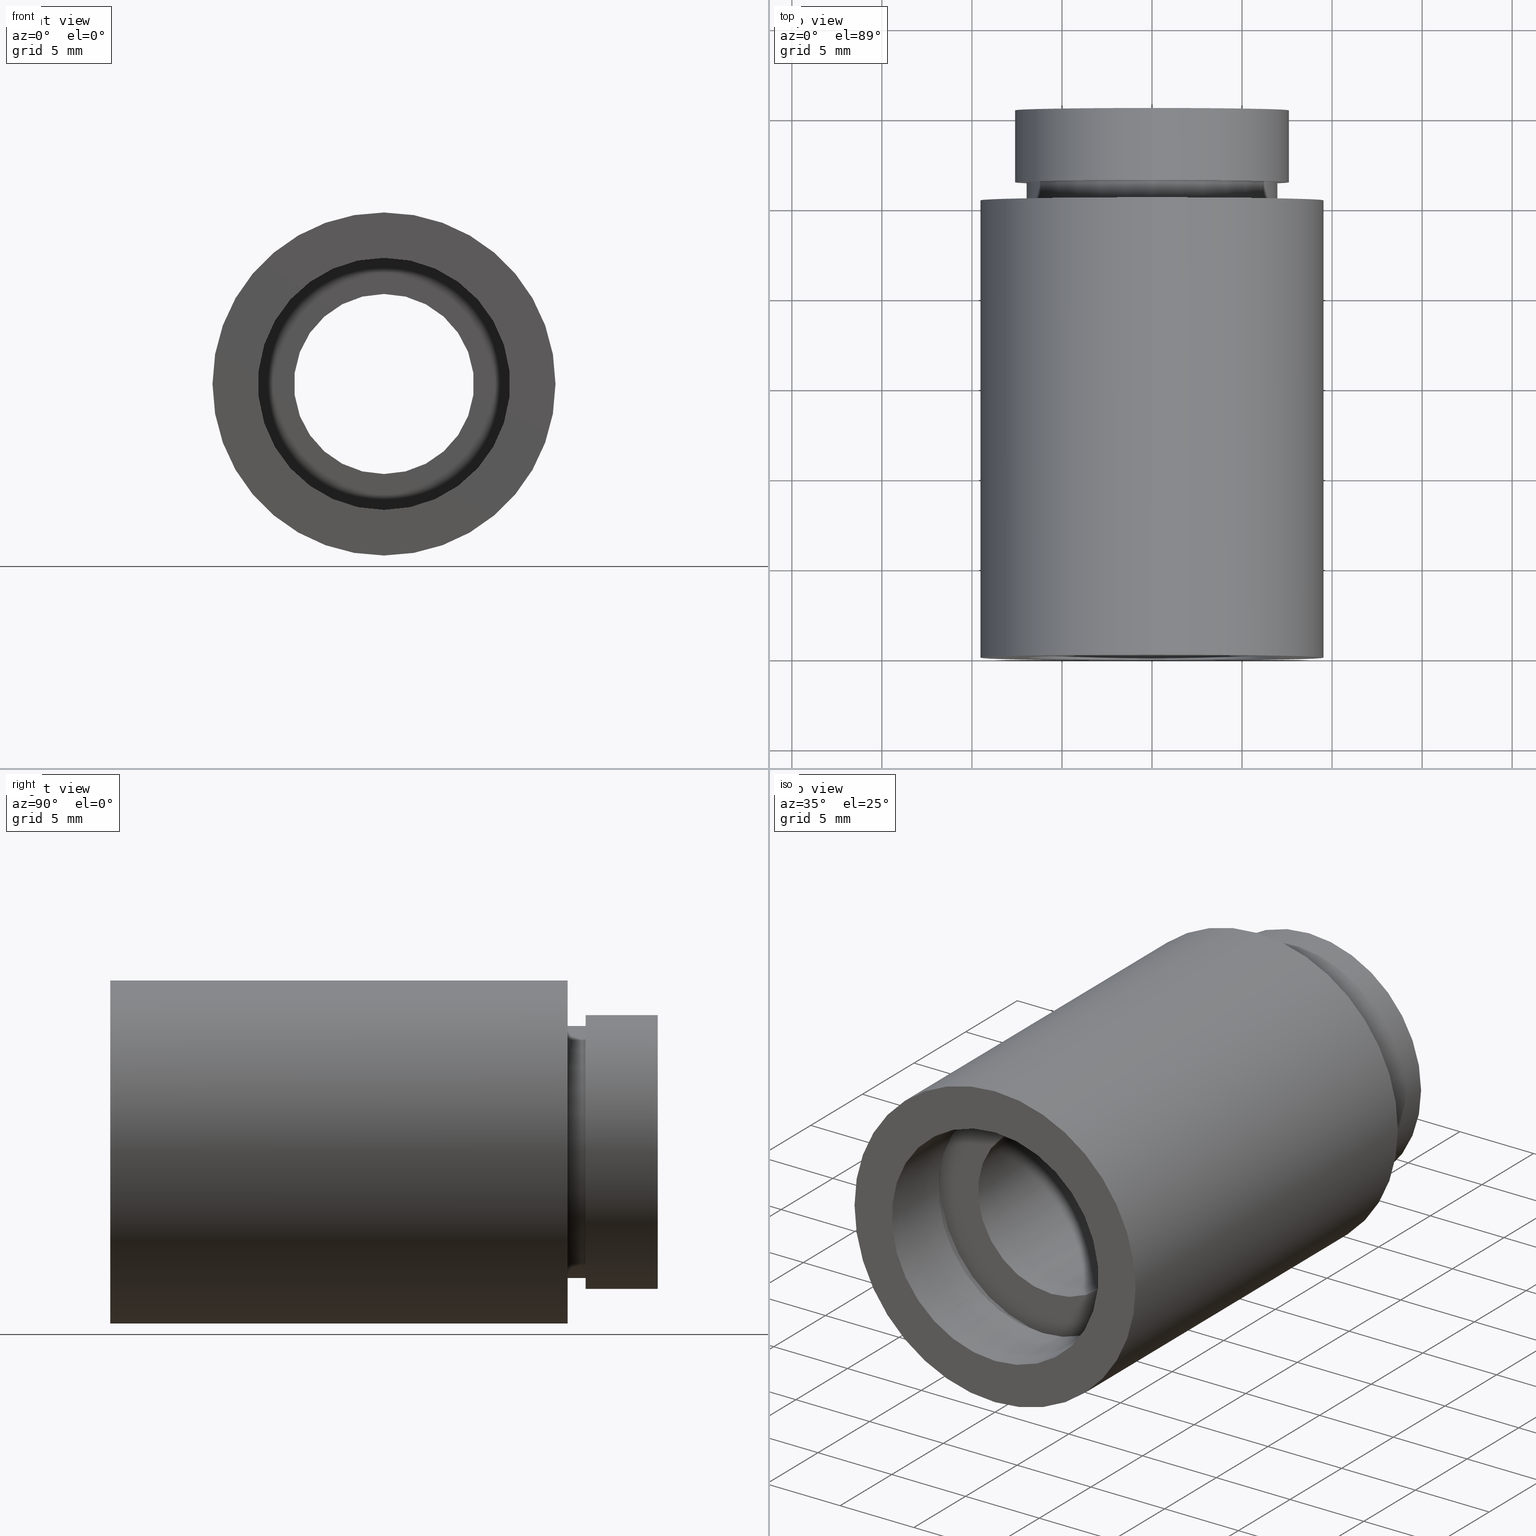
[diagram: canonical four-view strip — front | top / right | iso, engineering-drawing reading convention]
A machine part, canonical four-view strip (front | top / right | iso — engineering-drawing reading convention). The complete STEP part file that produces these views, byte-faithful:
ISO-10303-21;
HEADER;
FILE_DESCRIPTION (( 'STEP AP214' ),
    '1' );
FILE_NAME ('503091.STEP',
    '2019-09-11T06:44:25',
    ( '' ),
    ( '' ),
    'SwSTEP 2.0',
    'SolidWorks 2016',
    '' );
FILE_SCHEMA (( 'AUTOMOTIVE_DESIGN' ));
ENDSEC;

DATA;
#1 = ORIENTED_EDGE ( 'NONE', *, *, #303, .T. ) ;
#2 = VERTEX_POINT ( 'NONE', #529 ) ;
#3 = EDGE_CURVE ( 'NONE', #595, #363, #457, .T. ) ;
#4 = VECTOR ( 'NONE', #300, 1000.000000000000000 ) ;
#5 = CARTESIAN_POINT ( 'NONE',  ( 0.0000000000000000000, 5.499999999999976900, 7.600000000000020100 ) ) ;
#6 = CARTESIAN_POINT ( 'NONE',  ( 9.307315673519909100E-016, 161.3761669434274500, -7.600000000000020100 ) ) ;
#7 =( LENGTH_UNIT ( ) NAMED_UNIT ( * ) SI_UNIT ( .MILLI., .METRE. ) );
#8 = PLANE ( 'NONE',  #167 ) ;
#9 = ORIENTED_EDGE ( 'NONE', *, *, #423, .T. ) ;
#10 = CARTESIAN_POINT ( 'NONE',  ( 0.0000000000000000000, 161.3761669434274500, 0.0000000000000000000 ) ) ;
#11 = DIRECTION ( 'NONE',  ( -0.0000000000000000000, 1.000000000000000000, -0.0000000000000000000 ) ) ;
#12 = COLOUR_RGB ( '',1.000000000000000000, 1.000000000000000000, 1.000000000000000000 ) ;
#13 = MECHANICAL_DESIGN_GEOMETRIC_PRESENTATION_REPRESENTATION (  '', ( #597 ), #334 ) ;
#14 = CARTESIAN_POINT ( 'NONE',  ( 0.0000000000000000000, 26.39999999999997700, 0.0000000000000000000 ) ) ;
#15 = CARTESIAN_POINT ( 'NONE',  ( 0.0000000000000000000, 26.39999999999997700, 0.0000000000000000000 ) ) ;
#16 = EDGE_CURVE ( 'NONE', #25, #376, #422, .T. ) ;
#17 = ORIENTED_EDGE ( 'NONE', *, *, #301, .T. ) ;
#18 = COLOUR_RGB ( '',1.000000000000000000, 1.000000000000000000, 1.000000000000000000 ) ;
#19 = SURFACE_STYLE_USAGE ( .BOTH. , #70 ) ;
#20 = CYLINDRICAL_SURFACE ( 'NONE', #211, 7.600000000000014700 ) ;
#21 = CIRCLE ( 'NONE', #396, 7.600000000000019200 ) ;
#22 = FACE_OUTER_BOUND ( 'NONE', #248, .T. ) ;
#23 = CARTESIAN_POINT ( 'NONE',  ( 9.307315673519901200E-016, 161.3761669434274500, -7.600000000000014700 ) ) ;
#24 = DIRECTION ( 'NONE',  ( -0.0000000000000000000, 1.000000000000000000, -0.0000000000000000000 ) ) ;
#25 = VERTEX_POINT ( 'NONE', #349 ) ;
#26 = CARTESIAN_POINT ( 'NONE',  ( 1.166476076187856400E-015, 25.39999999999997700, -9.525000000000019900 ) ) ;
#27 = AXIS2_PLACEMENT_3D ( 'NONE', #420, #139, #514 ) ;
#28 = ORIENTED_EDGE ( 'NONE', *, *, #82, .T. ) ;
#29 = CIRCLE ( 'NONE', #165, 5.000000000000019500 ) ;
#30 = ADVANCED_FACE ( 'NONE', ( #599, #190 ), #8, .F. ) ;
#31 = EDGE_CURVE ( 'NONE', #437, #413, #221, .T. ) ;
#32 = CARTESIAN_POINT ( 'NONE',  ( 0.0000000000000000000, 161.3761669434274500, 5.000000000000019500 ) ) ;
#33 = DIRECTION ( 'NONE',  ( 0.0000000000000000000, 0.0000000000000000000, 1.000000000000000000 ) ) ;
#34 = ORIENTED_EDGE ( 'NONE', *, *, #220, .F. ) ;
#35 = DIRECTION ( 'NONE',  ( 0.0000000000000000000, 0.0000000000000000000, 1.000000000000000000 ) ) ;
#36 = DIRECTION ( 'NONE',  ( -0.0000000000000000000, 1.000000000000000000, -0.0000000000000000000 ) ) ;
#37 = EDGE_CURVE ( 'NONE', #347, #393, #348, .T. ) ;
#38 = DIRECTION ( 'NONE',  ( 0.0000000000000000000, 0.0000000000000000000, 1.000000000000000000 ) ) ;
#39 = EDGE_LOOP ( 'NONE', ( #251, #66 ) ) ;
#40 = ADVANCED_FACE ( 'NONE', ( #335 ), #621, .F. ) ;
#41 = AXIS2_PLACEMENT_3D ( 'NONE', #151, #108, #391 ) ;
#42 = DIRECTION ( 'NONE',  ( 0.0000000000000000000, 0.0000000000000000000, 1.000000000000000000 ) ) ;
#43 = ORIENTED_EDGE ( 'NONE', *, *, #444, .F. ) ;
#44 = SURFACE_STYLE_FILL_AREA ( #325 ) ;
#45 = FILL_AREA_STYLE ('',( #323 ) ) ;
#46 =( NAMED_UNIT ( * ) SI_UNIT ( $, .STERADIAN. ) SOLID_ANGLE_UNIT ( ) );
#47 = AXIS2_PLACEMENT_3D ( 'NONE', #101, #436, #57 ) ;
#48 = DIRECTION ( 'NONE',  ( 0.0000000000000000000, 0.0000000000000000000, 1.000000000000000000 ) ) ;
#49 = ORIENTED_EDGE ( 'NONE', *, *, #126, .F. ) ;
#50 = PRODUCT_DEFINITION_CONTEXT ( 'detailed design', #53, 'design' ) ;
#51 = FACE_BOUND ( 'NONE', #494, .T. ) ;
#52 = DIRECTION ( 'NONE',  ( 0.0000000000000000000, 0.0000000000000000000, 1.000000000000000000 ) ) ;
#53 = APPLICATION_CONTEXT ( 'automotive_design' ) ;
#54 = DIRECTION ( 'NONE',  ( -0.0000000000000000000, 1.000000000000000000, -0.0000000000000000000 ) ) ;
#55 = ORIENTED_EDGE ( 'NONE', *, *, #106, .T. ) ;
#56 = ORIENTED_EDGE ( 'NONE', *, *, #247, .T. ) ;
#57 = DIRECTION ( 'NONE',  ( 0.0000000000000000000, 0.0000000000000000000, 1.000000000000000000 ) ) ;
#58 = DIRECTION ( 'NONE',  ( 0.0000000000000000000, 0.0000000000000000000, 1.000000000000000000 ) ) ;
#59 = STYLED_ITEM ( 'NONE', ( #466 ), #230 ) ;
#60 = DIRECTION ( 'NONE',  ( -0.0000000000000000000, 1.000000000000000000, -0.0000000000000000000 ) ) ;
#61 = DIRECTION ( 'NONE',  ( 0.0000000000000000000, 0.0000000000000000000, 1.000000000000000000 ) ) ;
#62 = EDGE_CURVE ( 'NONE', #98, #2, #222, .T. ) ;
#63 = DIRECTION ( 'NONE',  ( -0.0000000000000000000, 1.000000000000000000, -0.0000000000000000000 ) ) ;
#64 = ORIENTED_EDGE ( 'NONE', *, *, #476, .T. ) ;
#65 = CIRCLE ( 'NONE', #47, 7.600000000000020100 ) ;
#66 = ORIENTED_EDGE ( 'NONE', *, *, #433, .F. ) ;
#67 = SURFACE_STYLE_USAGE ( .BOTH. , #538 ) ;
#68 = AXIS2_PLACEMENT_3D ( 'NONE', #559, #183, #564 ) ;
#69 =( NAMED_UNIT ( * ) PLANE_ANGLE_UNIT ( ) SI_UNIT ( $, .RADIAN. ) );
#70 = SURFACE_SIDE_STYLE ('',( #299 ) ) ;
#71 = EDGE_CURVE ( 'NONE', #258, #616, #601, .T. ) ;
#72 = ORIENTED_EDGE ( 'NONE', *, *, #402, .T. ) ;
#73 = EDGE_LOOP ( 'NONE', ( #446, #540 ) ) ;
#74 = DIRECTION ( 'NONE',  ( 0.0000000000000000000, 0.0000000000000000000, 1.000000000000000000 ) ) ;
#75 = FACE_BOUND ( 'NONE', #39, .T. ) ;
#76 = AXIS2_PLACEMENT_3D ( 'NONE', #129, #414, #500 ) ;
#77 = CARTESIAN_POINT ( 'NONE',  ( 1.166476076187856400E-015, 161.3761669434274500, -9.525000000000019900 ) ) ;
#78 = FILL_AREA_STYLE_COLOUR ( '', #178 ) ;
#79 = PRESENTATION_LAYER_ASSIGNMENT (  '', '', ( #378 ) ) ;
#80 = DIRECTION ( 'NONE',  ( -0.0000000000000000000, 1.000000000000000000, -0.0000000000000000000 ) ) ;
#81 = CYLINDRICAL_SURFACE ( 'NONE', #503, 5.000000000000019500 ) ;
#82 = EDGE_CURVE ( 'NONE', #399, #607, #507, .T. ) ;
#83 = CARTESIAN_POINT ( 'NONE',  ( 0.0000000000000000000, 161.3761669434274500, 0.0000000000000000000 ) ) ;
#84 = ORIENTED_EDGE ( 'NONE', *, *, #82, .F. ) ;
#85 = PLANE ( 'NONE',  #296 ) ;
#86 = SURFACE_STYLE_USAGE ( .BOTH. , #232 ) ;
#87 = AXIS2_PLACEMENT_3D ( 'NONE', #583, #346, #253 ) ;
#88 = PRODUCT_CONTEXT ( 'NONE', #615, 'mechanical' ) ;
#89 = DIRECTION ( 'NONE',  ( -0.0000000000000000000, 1.000000000000000000, -0.0000000000000000000 ) ) ;
#90 = EDGE_CURVE ( 'NONE', #575, #399, #336, .T. ) ;
#91 = VECTOR ( 'NONE', #54, 1000.000000000000000 ) ;
#92 =( NAMED_UNIT ( * ) SI_UNIT ( $, .STERADIAN. ) SOLID_ANGLE_UNIT ( ) );
#93 = DIRECTION ( 'NONE',  ( 0.0000000000000000000, -1.000000000000000000, 0.0000000000000000000 ) ) ;
#94 = DIRECTION ( 'NONE',  ( 0.0000000000000000000, -1.000000000000000000, 0.0000000000000000000 ) ) ;
#95 = DIRECTION ( 'NONE',  ( 1.000000000000000000, 0.0000000000000000000, 0.0000000000000000000 ) ) ;
#96 = ORIENTED_EDGE ( 'NONE', *, *, #301, .F. ) ;
#97 = SURFACE_SIDE_STYLE ('',( #526 ) ) ;
#98 = VERTEX_POINT ( 'NONE', #586 ) ;
#99 = EDGE_CURVE ( 'NONE', #607, #404, #372, .T. ) ;
#100 = FACE_OUTER_BOUND ( 'NONE', #225, .T. ) ;
#101 = CARTESIAN_POINT ( 'NONE',  ( 0.0000000000000000000, 5.499999999999976900, 0.0000000000000000000 ) ) ;
#102 = ORIENTED_EDGE ( 'NONE', *, *, #71, .T. ) ;
#103 = DIRECTION ( 'NONE',  ( -0.0000000000000000000, 1.000000000000000000, 0.0000000000000000000 ) ) ;
#104 = SURFACE_STYLE_FILL_AREA ( #544 ) ;
#105 = UNCERTAINTY_MEASURE_WITH_UNIT (LENGTH_MEASURE( 1.000000000000000100E-005 ), #326, 'distance_accuracy_value', 'NONE');
#106 = EDGE_CURVE ( 'NONE', #2, #363, #431, .T. ) ;
#107 = CARTESIAN_POINT ( 'NONE',  ( 9.307315673519901200E-016, 30.39999999999998400, -7.600000000000014700 ) ) ;
#108 = DIRECTION ( 'NONE',  ( -0.0000000000000000000, 1.000000000000000000, -0.0000000000000000000 ) ) ;
#109 = ORIENTED_EDGE ( 'NONE', *, *, #160, .F. ) ;
#110 = DIRECTION ( 'NONE',  ( -0.0000000000000000000, 1.000000000000000000, 0.0000000000000000000 ) ) ;
#111 = AXIS2_PLACEMENT_3D ( 'NONE', #482, #93, #428 ) ;
#112 = LINE ( 'NONE', #77, #191 ) ;
#113 = DIRECTION ( 'NONE',  ( -0.0000000000000000000, 1.000000000000000000, 0.0000000000000000000 ) ) ;
#114 = EDGE_CURVE ( 'NONE', #204, #132, #317, .T. ) ;
#115 = EDGE_LOOP ( 'NONE', ( #146, #462, #72, #288 ) ) ;
#116 = CARTESIAN_POINT ( 'NONE',  ( 0.0000000000000000000, 30.39999999999998400, 0.0000000000000000000 ) ) ;
#117 = ORIENTED_EDGE ( 'NONE', *, *, #99, .F. ) ;
#118 = FACE_OUTER_BOUND ( 'NONE', #441, .T. ) ;
#119 = CYLINDRICAL_SURFACE ( 'NONE', #545, 7.600000000000020100 ) ;
#120 = DIRECTION ( 'NONE',  ( -0.0000000000000000000, 1.000000000000000000, -0.0000000000000000000 ) ) ;
#121 = AXIS2_PLACEMENT_3D ( 'NONE', #468, #272, #425 ) ;
#122 = VERTEX_POINT ( 'NONE', #26 ) ;
#123 = SURFACE_SIDE_STYLE ('',( #104 ) ) ;
#124 = CIRCLE ( 'NONE', #217, 9.525000000000019900 ) ;
#125 = ORIENTED_EDGE ( 'NONE', *, *, #361, .T. ) ;
#126 = EDGE_CURVE ( 'NONE', #363, #595, #509, .T. ) ;
#127 = ADVANCED_FACE ( 'NONE', ( #537 ), #119, .F. ) ;
#128 = CARTESIAN_POINT ( 'NONE',  ( 0.0000000000000000000, 25.39999999999997700, 7.000000000000015100 ) ) ;
#129 = CARTESIAN_POINT ( 'NONE',  ( 0.0000000000000000000, 26.39999999999997700, 0.0000000000000000000 ) ) ;
#130 = PRESENTATION_LAYER_ASSIGNMENT (  '', '', ( #155 ) ) ;
#131 = ORIENTED_EDGE ( 'NONE', *, *, #220, .T. ) ;
#132 = VERTEX_POINT ( 'NONE', #533 ) ;
#133 = SHAPE_DEFINITION_REPRESENTATION ( #426, #453 ) ;
#134 = FACE_OUTER_BOUND ( 'NONE', #152, .T. ) ;
#135 = AXIS2_PLACEMENT_3D ( 'NONE', #291, #489, #58 ) ;
#136 = ADVANCED_FACE ( 'NONE', ( #22 ), #81, .F. ) ;
#137 = SURFACE_STYLE_USAGE ( .BOTH. , #424 ) ;
#138 = ORIENTED_EDGE ( 'NONE', *, *, #618, .F. ) ;
#139 = DIRECTION ( 'NONE',  ( -0.0000000000000000000, 1.000000000000000000, -0.0000000000000000000 ) ) ;
#140 = DIRECTION ( 'NONE',  ( 0.0000000000000000000, 0.0000000000000000000, 1.000000000000000000 ) ) ;
#141 = CARTESIAN_POINT ( 'NONE',  ( 0.0000000000000000000, 161.3761669434274500, 7.000000000000020400 ) ) ;
#142 = EDGE_LOOP ( 'NONE', ( #452, #536, #320, #394 ) ) ;
#143 = AXIS2_PLACEMENT_3D ( 'NONE', #397, #110, #531 ) ;
#144 = SURFACE_STYLE_USAGE ( .BOTH. , #97 ) ;
#145 = CARTESIAN_POINT ( 'NONE',  ( 9.525000000000019900, 25.39999999999997700, 0.0000000000000000000 ) ) ;
#146 = ORIENTED_EDGE ( 'NONE', *, *, #171, .F. ) ;
#147 = EDGE_CURVE ( 'NONE', #2, #98, #572, .T. ) ;
#148 = DIRECTION ( 'NONE',  ( -0.0000000000000000000, 1.000000000000000000, -0.0000000000000000000 ) ) ;
#149 = CARTESIAN_POINT ( 'NONE',  ( 7.600000000000020100, 5.499999999999984000, 0.0000000000000000000 ) ) ;
#150 = CARTESIAN_POINT ( 'NONE',  ( 8.572527594031496900E-016, 161.3761669434274500, -7.000000000000020400 ) ) ;
#151 = CARTESIAN_POINT ( 'NONE',  ( 0.0000000000000000000, -2.775557561562891400E-014, 0.0000000000000000000 ) ) ;
#152 = EDGE_LOOP ( 'NONE', ( #262, #527, #96, #340 ) ) ;
#153 = CARTESIAN_POINT ( 'NONE',  ( 0.0000000000000000000, -2.775557561562891400E-014, 0.0000000000000000000 ) ) ;
#154 = ORIENTED_EDGE ( 'NONE', *, *, #423, .F. ) ;
#155 = STYLED_ITEM ( 'NONE', ( #563 ), #212 ) ;
#156 = PLANE ( 'NONE',  #143 ) ;
#157 = CIRCLE ( 'NONE', #418, 9.525000000000019900 ) ;
#158 = CARTESIAN_POINT ( 'NONE',  ( 0.0000000000000000000, 5.499999999999976900, 5.000000000000019500 ) ) ;
#159 = CARTESIAN_POINT ( 'NONE',  ( 0.0000000000000000000, 161.3761669434274500, 7.600000000000020100 ) ) ;
#160 = EDGE_CURVE ( 'NONE', #98, #595, #198, .T. ) ;
#161 = FILL_AREA_STYLE ('',( #359 ) ) ;
#162 = ORIENTED_EDGE ( 'NONE', *, *, #269, .F. ) ;
#163 = FILL_AREA_STYLE ('',( #485 ) ) ;
#164 = CIRCLE ( 'NONE', #587, 7.000000000000020400 ) ;
#165 = AXIS2_PLACEMENT_3D ( 'NONE', #278, #382, #332 ) ;
#166 = DIRECTION ( 'NONE',  ( -0.0000000000000000000, 1.000000000000000000, -0.0000000000000000000 ) ) ;
#167 = AXIS2_PLACEMENT_3D ( 'NONE', #149, #103, #395 ) ;
#168 = ORIENTED_EDGE ( 'NONE', *, *, #247, .F. ) ;
#169 = DIRECTION ( 'NONE',  ( 0.0000000000000000000, 0.0000000000000000000, 1.000000000000000000 ) ) ;
#170 = FACE_OUTER_BOUND ( 'NONE', #268, .T. ) ;
#171 = EDGE_CURVE ( 'NONE', #347, #25, #21, .T. ) ;
#172 =( LENGTH_UNIT ( ) NAMED_UNIT ( * ) SI_UNIT ( .MILLI., .METRE. ) );
#173 =( NAMED_UNIT ( * ) SI_UNIT ( $, .STERADIAN. ) SOLID_ANGLE_UNIT ( ) );
#174 = ORIENTED_EDGE ( 'NONE', *, *, #454, .T. ) ;
#175 = DIRECTION ( 'NONE',  ( -0.0000000000000000000, 1.000000000000000000, -0.0000000000000000000 ) ) ;
#176 = PRESENTATION_STYLE_ASSIGNMENT (( #337 ) ) ;
#177 = FACE_OUTER_BOUND ( 'NONE', #504, .T. ) ;
#178 = COLOUR_RGB ( '',1.000000000000000000, 1.000000000000000000, 1.000000000000000000 ) ;
#179 = STYLED_ITEM ( 'NONE', ( #277 ), #40 ) ;
#180 = SURFACE_STYLE_USAGE ( .BOTH. , #123 ) ;
#181 = FACE_OUTER_BOUND ( 'NONE', #375, .T. ) ;
#182 = ADVANCED_FACE ( 'NONE', ( #611 ), #553, .T. ) ;
#183 = DIRECTION ( 'NONE',  ( -0.0000000000000000000, 1.000000000000000000, -0.0000000000000000000 ) ) ;
#184 = EDGE_CURVE ( 'NONE', #575, #404, #388, .T. ) ;
#185 =( NAMED_UNIT ( * ) PLANE_ANGLE_UNIT ( ) SI_UNIT ( $, .RADIAN. ) );
#186 = ORIENTED_EDGE ( 'NONE', *, *, #263, .F. ) ;
#187 = CARTESIAN_POINT ( 'NONE',  ( 0.0000000000000000000, 161.3761669434274500, 9.525000000000019900 ) ) ;
#188 = PRESENTATION_STYLE_ASSIGNMENT (( #144 ) ) ;
#189 = ADVANCED_FACE ( 'NONE', ( #181 ), #236, .T. ) ;
#190 = FACE_BOUND ( 'NONE', #577, .T. ) ;
#191 = VECTOR ( 'NONE', #223, 1000.000000000000000 ) ;
#192 = MECHANICAL_DESIGN_GEOMETRIC_PRESENTATION_REPRESENTATION (  '', ( #155 ), #321 ) ;
#193 = CARTESIAN_POINT ( 'NONE',  ( 8.572527594031490900E-016, 26.39999999999997700, -7.000000000000015100 ) ) ;
#194 =( NAMED_UNIT ( * ) PLANE_ANGLE_UNIT ( ) SI_UNIT ( $, .RADIAN. ) );
#195 = EDGE_CURVE ( 'NONE', #525, #122, #112, .T. ) ;
#196 = EDGE_LOOP ( 'NONE', ( #43, #297 ) ) ;
#197 = DIRECTION ( 'NONE',  ( -0.0000000000000000000, 1.000000000000000000, -0.0000000000000000000 ) ) ;
#198 = LINE ( 'NONE', #23, #229 ) ;
#199 = DIRECTION ( 'NONE',  ( -0.0000000000000000000, 1.000000000000000000, -0.0000000000000000000 ) ) ;
#200 = DIRECTION ( 'NONE',  ( 0.0000000000000000000, 0.0000000000000000000, 1.000000000000000000 ) ) ;
#201 = CARTESIAN_POINT ( 'NONE',  ( 0.0000000000000000000, 30.39999999999998400, 0.0000000000000000000 ) ) ;
#202 = ORIENTED_EDGE ( 'NONE', *, *, #269, .T. ) ;
#203 = AXIS2_PLACEMENT_3D ( 'NONE', #15, #541, #493 ) ;
#204 = VERTEX_POINT ( 'NONE', #128 ) ;
#205 = DIRECTION ( 'NONE',  ( 0.0000000000000000000, -0.0000000000000000000, -1.000000000000000000 ) ) ;
#206 = CIRCLE ( 'NONE', #266, 7.000000000000019500 ) ;
#207 = DIRECTION ( 'NONE',  ( 0.0000000000000000000, 0.0000000000000000000, 1.000000000000000000 ) ) ;
#208 = MECHANICAL_DESIGN_GEOMETRIC_PRESENTATION_REPRESENTATION (  '', ( #179 ), #213 ) ;
#209 = PLANE ( 'NONE',  #365 ) ;
#210 = CLOSED_SHELL ( 'NONE', ( #230, #127, #136, #189, #467, #605, #502, #366, #411, #182, #602, #310, #322, #40, #30, #558, #455, #369 ) ) ;
#211 = AXIS2_PLACEMENT_3D ( 'NONE', #612, #381, #508 ) ;
#212 = MANIFOLD_SOLID_BREP ( '��ת1', #210 ) ;
#213 =( GEOMETRIC_REPRESENTATION_CONTEXT ( 3 ) GLOBAL_UNCERTAINTY_ASSIGNED_CONTEXT ( ( #613 ) ) GLOBAL_UNIT_ASSIGNED_CONTEXT ( ( #443, #496, #450 ) ) REPRESENTATION_CONTEXT ( 'NONE', 'WORKASPACE' ) );
#214 = DIRECTION ( 'NONE',  ( 0.0000000000000000000, 0.0000000000000000000, 1.000000000000000000 ) ) ;
#215 = ORIENTED_EDGE ( 'NONE', *, *, #487, .T. ) ;
#216 = DIRECTION ( 'NONE',  ( -0.0000000000000000000, 1.000000000000000000, -0.0000000000000000000 ) ) ;
#217 = AXIS2_PLACEMENT_3D ( 'NONE', #469, #89, #38 ) ;
#218 =( NAMED_UNIT ( * ) PLANE_ANGLE_UNIT ( ) SI_UNIT ( $, .RADIAN. ) );
#219 = ORIENTED_EDGE ( 'NONE', *, *, #62, .T. ) ;
#220 = EDGE_CURVE ( 'NONE', #122, #257, #157, .T. ) ;
#221 = CIRCLE ( 'NONE', #41, 7.000000000000019500 ) ;
#222 = CIRCLE ( 'NONE', #203, 7.600000000000014700 ) ;
#223 = DIRECTION ( 'NONE',  ( -0.0000000000000000000, 1.000000000000000000, -0.0000000000000000000 ) ) ;
#224 = MECHANICAL_DESIGN_GEOMETRIC_PRESENTATION_REPRESENTATION (  '', ( #386 ), #581 ) ;
#225 = EDGE_LOOP ( 'NONE', ( #360, #486, #330, #64 ) ) ;
#226 = ORIENTED_EDGE ( 'NONE', *, *, #184, .T. ) ;
#227 = CARTESIAN_POINT ( 'NONE',  ( 0.0000000000000000000, 30.39999999999998400, 7.600000000000014700 ) ) ;
#228 = AXIS2_PLACEMENT_3D ( 'NONE', #480, #478, #200 ) ;
#229 = VECTOR ( 'NONE', #36, 1000.000000000000000 ) ;
#230 = ADVANCED_FACE ( 'NONE', ( #252 ), #561, .F. ) ;
#231 = EDGE_CURVE ( 'NONE', #437, #419, #620, .T. ) ;
#232 = SURFACE_SIDE_STYLE ('',( #44 ) ) ;
#233 = UNCERTAINTY_MEASURE_WITH_UNIT (LENGTH_MEASURE( 1.000000000000000100E-005 ), #172, 'distance_accuracy_value', 'NONE');
#234 = ORIENTED_EDGE ( 'NONE', *, *, #126, .T. ) ;
#235 =( NAMED_UNIT ( * ) SI_UNIT ( $, .STERADIAN. ) SOLID_ANGLE_UNIT ( ) );
#236 = CYLINDRICAL_SURFACE ( 'NONE', #358, 7.600000000000014700 ) ;
#237 = AXIS2_PLACEMENT_3D ( 'NONE', #14, #295, #61 ) ;
#238 = DIRECTION ( 'NONE',  ( -0.0000000000000000000, 1.000000000000000000, -0.0000000000000000000 ) ) ;
#239 = CARTESIAN_POINT ( 'NONE',  ( 0.0000000000000000000, -2.775557561562891400E-014, 0.0000000000000000000 ) ) ;
#240 = APPLICATION_PROTOCOL_DEFINITION ( 'draft international standard', 'automotive_design', 1998, #53 ) ;
#241 = MECHANICAL_DESIGN_GEOMETRIC_PRESENTATION_REPRESENTATION (  '', ( #280 ), #294 ) ;
#242 = ORIENTED_EDGE ( 'NONE', *, *, #603, .F. ) ;
#243 = CARTESIAN_POINT ( 'NONE',  ( 0.0000000000000000000, 30.39999999999998400, 5.000000000000019500 ) ) ;
#244 =( NAMED_UNIT ( * ) PLANE_ANGLE_UNIT ( ) SI_UNIT ( $, .RADIAN. ) );
#245 = CIRCLE ( 'NONE', #27, 7.000000000000015100 ) ;
#246 = VECTOR ( 'NONE', #400, 1000.000000000000000 ) ;
#247 = EDGE_CURVE ( 'NONE', #525, #285, #306, .T. ) ;
#248 = EDGE_LOOP ( 'NONE', ( #242, #28, #354, #499 ) ) ;
#249 = AXIS2_PLACEMENT_3D ( 'NONE', #239, #199, #140 ) ;
#250 = DIRECTION ( 'NONE',  ( 0.0000000000000000000, 0.0000000000000000000, 1.000000000000000000 ) ) ;
#251 = ORIENTED_EDGE ( 'NONE', *, *, #476, .F. ) ;
#252 = FACE_OUTER_BOUND ( 'NONE', #290, .T. ) ;
#253 = DIRECTION ( 'NONE',  ( 0.0000000000000000000, 0.0000000000000000000, 1.000000000000000000 ) ) ;
#254 = COLOUR_RGB ( '',1.000000000000000000, 1.000000000000000000, 1.000000000000000000 ) ;
#255 = UNCERTAINTY_MEASURE_WITH_UNIT (LENGTH_MEASURE( 1.000000000000000100E-005 ), #463, 'distance_accuracy_value', 'NONE');
#256 = DIRECTION ( 'NONE',  ( -0.0000000000000000000, 1.000000000000000000, -0.0000000000000000000 ) ) ;
#257 = VERTEX_POINT ( 'NONE', #472 ) ;
#258 = VERTEX_POINT ( 'NONE', #547 ) ;
#259 = VECTOR ( 'NONE', #460, 1000.000000000000000 ) ;
#260 = PRESENTATION_LAYER_ASSIGNMENT (  '', '', ( #59 ) ) ;
#261 = CARTESIAN_POINT ( 'NONE',  ( 0.0000000000000000000, 161.3761669434274500, 7.600000000000014700 ) ) ;
#262 = ORIENTED_EDGE ( 'NONE', *, *, #618, .T. ) ;
#263 = EDGE_CURVE ( 'NONE', #25, #347, #405, .T. ) ;
#264 = DIRECTION ( 'NONE',  ( -0.0000000000000000000, 1.000000000000000000, -0.0000000000000000000 ) ) ;
#265 = CARTESIAN_POINT ( 'NONE',  ( 0.0000000000000000000, 25.39999999999997700, 0.0000000000000000000 ) ) ;
#266 = AXIS2_PLACEMENT_3D ( 'NONE', #153, #484, #250 ) ;
#267 = DIRECTION ( 'NONE',  ( -0.0000000000000000000, 1.000000000000000000, -0.0000000000000000000 ) ) ;
#268 = EDGE_LOOP ( 'NONE', ( #234, #495 ) ) ;
#269 = EDGE_CURVE ( 'NONE', #132, #616, #245, .T. ) ;
#270 = ORIENTED_EDGE ( 'NONE', *, *, #231, .F. ) ;
#271 = ORIENTED_EDGE ( 'NONE', *, *, #114, .F. ) ;
#272 = DIRECTION ( 'NONE',  ( -0.0000000000000000000, 1.000000000000000000, -0.0000000000000000000 ) ) ;
#273 = UNCERTAINTY_MEASURE_WITH_UNIT (LENGTH_MEASURE( 1.000000000000000100E-005 ), #7, 'distance_accuracy_value', 'NONE');
#274 = CIRCLE ( 'NONE', #87, 7.000000000000015100 ) ;
#275 = AXIS2_PLACEMENT_3D ( 'NONE', #570, #377, #48 ) ;
#276 = DIRECTION ( 'NONE',  ( -0.0000000000000000000, 1.000000000000000000, -0.0000000000000000000 ) ) ;
#277 = PRESENTATION_STYLE_ASSIGNMENT (( #67 ) ) ;
#278 = CARTESIAN_POINT ( 'NONE',  ( 0.0000000000000000000, 5.499999999999976900, 0.0000000000000000000 ) ) ;
#279 =( NAMED_UNIT ( * ) SI_UNIT ( $, .STERADIAN. ) SOLID_ANGLE_UNIT ( ) );
#280 = STYLED_ITEM ( 'NONE', ( #364 ), #136 ) ;
#281 = CARTESIAN_POINT ( 'NONE',  ( 0.0000000000000000000, -2.775557561562891400E-014, 7.000000000000019500 ) ) ;
#282 = ORIENTED_EDGE ( 'NONE', *, *, #263, .T. ) ;
#283 = FILL_AREA_STYLE_COLOUR ( '', #18 ) ;
#284 = DIRECTION ( 'NONE',  ( 0.0000000000000000000, 0.0000000000000000000, 1.000000000000000000 ) ) ;
#285 = VERTEX_POINT ( 'NONE', #566 ) ;
#286 = AXIS2_PLACEMENT_3D ( 'NONE', #287, #519, #284 ) ;
#287 = CARTESIAN_POINT ( 'NONE',  ( 0.0000000000000000000, 161.3761669434274500, 0.0000000000000000000 ) ) ;
#288 = ORIENTED_EDGE ( 'NONE', *, *, #16, .F. ) ;
#289 = CARTESIAN_POINT ( 'NONE',  ( 0.0000000000000000000, 161.3761669434274500, 0.0000000000000000000 ) ) ;
#290 = EDGE_LOOP ( 'NONE', ( #370, #174, #589, #270 ) ) ;
#291 = CARTESIAN_POINT ( 'NONE',  ( 0.0000000000000000000, 30.39999999999998400, 0.0000000000000000000 ) ) ;
#292 = CYLINDRICAL_SURFACE ( 'NONE', #345, 7.000000000000020400 ) ;
#293 = DIRECTION ( 'NONE',  ( -0.0000000000000000000, 1.000000000000000000, -0.0000000000000000000 ) ) ;
#294 =( GEOMETRIC_REPRESENTATION_CONTEXT ( 3 ) GLOBAL_UNCERTAINTY_ASSIGNED_CONTEXT ( ( #438 ) ) GLOBAL_UNIT_ASSIGNED_CONTEXT ( ( #351, #69, #491 ) ) REPRESENTATION_CONTEXT ( 'NONE', 'WORKASPACE' ) );
#295 = DIRECTION ( 'NONE',  ( -0.0000000000000000000, 1.000000000000000000, -0.0000000000000000000 ) ) ;
#296 = AXIS2_PLACEMENT_3D ( 'NONE', #556, #319, #371 ) ;
#297 = ORIENTED_EDGE ( 'NONE', *, *, #402, .F. ) ;
#298 = CYLINDRICAL_SURFACE ( 'NONE', #286, 7.000000000000015100 ) ;
#299 = SURFACE_STYLE_FILL_AREA ( #161 ) ;
#300 = DIRECTION ( 'NONE',  ( -0.0000000000000000000, 1.000000000000000000, -0.0000000000000000000 ) ) ;
#301 = EDGE_CURVE ( 'NONE', #257, #122, #124, .T. ) ;
#302 = CARTESIAN_POINT ( 'NONE',  ( 0.0000000000000000000, 30.39999999999998400, 0.0000000000000000000 ) ) ;
#303 = EDGE_CURVE ( 'NONE', #204, #258, #598, .T. ) ;
#304 = DIRECTION ( 'NONE',  ( -0.0000000000000000000, 1.000000000000000000, -0.0000000000000000000 ) ) ;
#305 = ORIENTED_EDGE ( 'NONE', *, *, #90, .F. ) ;
#306 = CIRCLE ( 'NONE', #542, 9.525000000000019900 ) ;
#307 = PRODUCT ( '503091', '503091', '', ( #88 ) ) ;
#308 = FILL_AREA_STYLE ('',( #409 ) ) ;
#309 = PRESENTATION_LAYER_ASSIGNMENT (  '', '', ( #386 ) ) ;
#310 = ADVANCED_FACE ( 'NONE', ( #464 ), #20, .T. ) ;
#311 = ORIENTED_EDGE ( 'NONE', *, *, #590, .F. ) ;
#312 = PRESENTATION_LAYER_ASSIGNMENT (  '', '', ( #461 ) ) ;
#313 = DIRECTION ( 'NONE',  ( -0.0000000000000000000, 1.000000000000000000, -0.0000000000000000000 ) ) ;
#314 = LINE ( 'NONE', #187, #439 ) ;
#315 = EDGE_LOOP ( 'NONE', ( #202, #215 ) ) ;
#316 = DIRECTION ( 'NONE',  ( 0.0000000000000000000, 0.0000000000000000000, 1.000000000000000000 ) ) ;
#317 = LINE ( 'NONE', #401, #246 ) ;
#318 = PRESENTATION_LAYER_ASSIGNMENT (  '', '', ( #597 ) ) ;
#319 = DIRECTION ( 'NONE',  ( 0.0000000000000000000, -1.000000000000000000, 0.0000000000000000000 ) ) ;
#320 = ORIENTED_EDGE ( 'NONE', *, *, #114, .T. ) ;
#321 =( GEOMETRIC_REPRESENTATION_CONTEXT ( 3 ) GLOBAL_UNCERTAINTY_ASSIGNED_CONTEXT ( ( #498 ) ) GLOBAL_UNIT_ASSIGNED_CONTEXT ( ( #407, #546, #173 ) ) REPRESENTATION_CONTEXT ( 'NONE', 'WORKASPACE' ) );
#322 = ADVANCED_FACE ( 'NONE', ( #569, #170 ), #85, .F. ) ;
#323 = FILL_AREA_STYLE_COLOUR ( '', #610 ) ;
#324 = FACE_BOUND ( 'NONE', #315, .T. ) ;
#325 = FILL_AREA_STYLE ('',( #78 ) ) ;
#326 =( LENGTH_UNIT ( ) NAMED_UNIT ( * ) SI_UNIT ( .MILLI., .METRE. ) );
#327 = AXIS2_PLACEMENT_3D ( 'NONE', #523, #293, #74 ) ;
#328 =( LENGTH_UNIT ( ) NAMED_UNIT ( * ) SI_UNIT ( .MILLI., .METRE. ) );
#329 = SURFACE_SIDE_STYLE ('',( #415 ) ) ;
#330 = ORIENTED_EDGE ( 'NONE', *, *, #231, .T. ) ;
#331 = DIRECTION ( 'NONE',  ( -0.0000000000000000000, 1.000000000000000000, -0.0000000000000000000 ) ) ;
#332 = DIRECTION ( 'NONE',  ( 0.0000000000000000000, 0.0000000000000000000, 1.000000000000000000 ) ) ;
#333 = CIRCLE ( 'NONE', #228, 7.600000000000020100 ) ;
#334 =( GEOMETRIC_REPRESENTATION_CONTEXT ( 3 ) GLOBAL_UNCERTAINTY_ASSIGNED_CONTEXT ( ( #105 ) ) GLOBAL_UNIT_ASSIGNED_CONTEXT ( ( #326, #470, #46 ) ) REPRESENTATION_CONTEXT ( 'NONE', 'WORKASPACE' ) );
#335 = FACE_OUTER_BOUND ( 'NONE', #596, .T. ) ;
#336 = CIRCLE ( 'NONE', #555, 5.000000000000019500 ) ;
#337 = SURFACE_STYLE_USAGE ( .BOTH. , #329 ) ;
#338 = APPLICATION_PROTOCOL_DEFINITION ( 'draft international standard', 'automotive_design', 1998, #615 ) ;
#339 = CARTESIAN_POINT ( 'NONE',  ( 0.0000000000000000000, 4.499999999999976000, 7.000000000000020400 ) ) ;
#340 = ORIENTED_EDGE ( 'NONE', *, *, #361, .F. ) ;
#341 = CARTESIAN_POINT ( 'NONE',  ( 8.572527594031495900E-016, -2.775557561562891400E-014, -7.000000000000019500 ) ) ;
#342 = LINE ( 'NONE', #150, #429 ) ;
#343 = DIRECTION ( 'NONE',  ( -0.0000000000000000000, 1.000000000000000000, -0.0000000000000000000 ) ) ;
#344 = CARTESIAN_POINT ( 'NONE',  ( 8.572527594031496900E-016, 4.499999999999976000, -7.000000000000020400 ) ) ;
#345 = AXIS2_PLACEMENT_3D ( 'NONE', #289, #197, #475 ) ;
#346 = DIRECTION ( 'NONE',  ( -0.0000000000000000000, 1.000000000000000000, -0.0000000000000000000 ) ) ;
#347 = VERTEX_POINT ( 'NONE', #373 ) ;
#348 = LINE ( 'NONE', #6, #91 ) ;
#349 = CARTESIAN_POINT ( 'NONE',  ( 0.0000000000000000000, 4.499999999999976000, 7.600000000000019200 ) ) ;
#350 = MECHANICAL_DESIGN_GEOMETRIC_PRESENTATION_REPRESENTATION (  '', ( #461 ), #410 ) ;
#351 =( LENGTH_UNIT ( ) NAMED_UNIT ( * ) SI_UNIT ( .MILLI., .METRE. ) );
#352 = PRODUCT_RELATED_PRODUCT_CATEGORY ( 'part', '', ( #307 ) ) ;
#353 = ORIENTED_EDGE ( 'NONE', *, *, #3, .F. ) ;
#354 = ORIENTED_EDGE ( 'NONE', *, *, #99, .T. ) ;
#355 = FACE_OUTER_BOUND ( 'NONE', #580, .T. ) ;
#356 = SURFACE_STYLE_FILL_AREA ( #45 ) ;
#357 = CARTESIAN_POINT ( 'NONE',  ( 0.0000000000000000000, 161.3761669434274500, 0.0000000000000000000 ) ) ;
#358 = AXIS2_PLACEMENT_3D ( 'NONE', #83, #264, #594 ) ;
#359 = FILL_AREA_STYLE_COLOUR ( '', #254 ) ;
#360 = ORIENTED_EDGE ( 'NONE', *, *, #454, .F. ) ;
#361 = EDGE_CURVE ( 'NONE', #285, #257, #314, .T. ) ;
#362 = SURFACE_STYLE_USAGE ( .BOTH. , #458 ) ;
#363 = VERTEX_POINT ( 'NONE', #227 ) ;
#364 = PRESENTATION_STYLE_ASSIGNMENT (( #19 ) ) ;
#365 = AXIS2_PLACEMENT_3D ( 'NONE', #585, #113, #207 ) ;
#366 = ADVANCED_FACE ( 'NONE', ( #118 ), #385, .T. ) ;
#367 = EDGE_LOOP ( 'NONE', ( #1, #102, #162, #271 ) ) ;
#368 = AXIS2_PLACEMENT_3D ( 'NONE', #302, #497, #169 ) ;
#369 = ADVANCED_FACE ( 'NONE', ( #100 ), #292, .F. ) ;
#370 = ORIENTED_EDGE ( 'NONE', *, *, #571, .F. ) ;
#371 = DIRECTION ( 'NONE',  ( 0.0000000000000000000, -0.0000000000000000000, -1.000000000000000000 ) ) ;
#372 = CIRCLE ( 'NONE', #368, 5.000000000000019500 ) ;
#373 = CARTESIAN_POINT ( 'NONE',  ( 9.307315673519907200E-016, 4.499999999999976000, -7.600000000000019200 ) ) ;
#374 = DIRECTION ( 'NONE',  ( 0.0000000000000000000, 0.0000000000000000000, 1.000000000000000000 ) ) ;
#375 = EDGE_LOOP ( 'NONE', ( #532, #448, #49, #548 ) ) ;
#376 = VERTEX_POINT ( 'NONE', #5 ) ;
#377 = DIRECTION ( 'NONE',  ( -0.0000000000000000000, 1.000000000000000000, -0.0000000000000000000 ) ) ;
#378 = STYLED_ITEM ( 'NONE', ( #188 ), #369 ) ;
#379 = DIRECTION ( 'NONE',  ( 0.0000000000000000000, 0.0000000000000000000, 1.000000000000000000 ) ) ;
#380 = VECTOR ( 'NONE', #304, 1000.000000000000000 ) ;
#381 = DIRECTION ( 'NONE',  ( -0.0000000000000000000, 1.000000000000000000, -0.0000000000000000000 ) ) ;
#382 = DIRECTION ( 'NONE',  ( -0.0000000000000000000, 1.000000000000000000, -0.0000000000000000000 ) ) ;
#383 = AXIS2_PLACEMENT_3D ( 'NONE', #116, #24, #593 ) ;
#384 = ORIENTED_EDGE ( 'NONE', *, *, #603, .T. ) ;
#385 = CYLINDRICAL_SURFACE ( 'NONE', #121, 9.525000000000019900 ) ;
#386 = STYLED_ITEM ( 'NONE', ( #591 ), #310 ) ;
#387 = CARTESIAN_POINT ( 'NONE',  ( 6.123233995736789000E-016, 5.499999999999976900, -5.000000000000019500 ) ) ;
#388 = LINE ( 'NONE', #32, #259 ) ;
#389 = MECHANICAL_DESIGN_GEOMETRIC_PRESENTATION_REPRESENTATION (  '', ( #59 ), #550 ) ;
#390 = CARTESIAN_POINT ( 'NONE',  ( 1.166476076187856400E-015, -2.775557561562891400E-014, -9.525000000000019900 ) ) ;
#391 = DIRECTION ( 'NONE',  ( 0.0000000000000000000, 0.0000000000000000000, 1.000000000000000000 ) ) ;
#392 = UNCERTAINTY_MEASURE_WITH_UNIT (LENGTH_MEASURE( 1.000000000000000100E-005 ), #328, 'distance_accuracy_value', 'NONE');
#393 = VERTEX_POINT ( 'NONE', #573 ) ;
#394 = ORIENTED_EDGE ( 'NONE', *, *, #487, .F. ) ;
#395 = DIRECTION ( 'NONE',  ( 0.0000000000000000000, 0.0000000000000000000, 1.000000000000000000 ) ) ;
#396 = AXIS2_PLACEMENT_3D ( 'NONE', #606, #175, #316 ) ;
#397 = CARTESIAN_POINT ( 'NONE',  ( 7.000000000000019500, -1.650046791174882700E-014, 0.0000000000000000000 ) ) ;
#398 = DIRECTION ( 'NONE',  ( 0.0000000000000000000, 0.0000000000000000000, 1.000000000000000000 ) ) ;
#399 = VERTEX_POINT ( 'NONE', #387 ) ;
#400 = DIRECTION ( 'NONE',  ( -0.0000000000000000000, 1.000000000000000000, -0.0000000000000000000 ) ) ;
#401 = CARTESIAN_POINT ( 'NONE',  ( 0.0000000000000000000, 161.3761669434274500, 7.000000000000015100 ) ) ;
#402 = EDGE_CURVE ( 'NONE', #393, #376, #333, .T. ) ;
#403 = CARTESIAN_POINT ( 'NONE',  ( 8.572527594031490900E-016, 161.3761669434274500, -7.000000000000015100 ) ) ;
#404 = VERTEX_POINT ( 'NONE', #243 ) ;
#405 = CIRCLE ( 'NONE', #408, 7.600000000000019200 ) ;
#406 = COLOUR_RGB ( '',1.000000000000000000, 1.000000000000000000, 1.000000000000000000 ) ;
#407 =( LENGTH_UNIT ( ) NAMED_UNIT ( * ) SI_UNIT ( .MILLI., .METRE. ) );
#408 = AXIS2_PLACEMENT_3D ( 'NONE', #562, #276, #42 ) ;
#409 = FILL_AREA_STYLE_COLOUR ( '', #552 ) ;
#410 =( GEOMETRIC_REPRESENTATION_CONTEXT ( 3 ) GLOBAL_UNCERTAINTY_ASSIGNED_CONTEXT ( ( #233 ) ) GLOBAL_UNIT_ASSIGNED_CONTEXT ( ( #172, #218, #505 ) ) REPRESENTATION_CONTEXT ( 'NONE', 'WORKASPACE' ) );
#411 = ADVANCED_FACE ( 'NONE', ( #51, #578 ), #524, .F. ) ;
#412 = CARTESIAN_POINT ( 'NONE',  ( 0.0000000000000000000, 161.3761669434274500, 0.0000000000000000000 ) ) ;
#413 = VERTEX_POINT ( 'NONE', #341 ) ;
#414 = DIRECTION ( 'NONE',  ( -0.0000000000000000000, 1.000000000000000000, -0.0000000000000000000 ) ) ;
#415 = SURFACE_STYLE_FILL_AREA ( #520 ) ;
#416 = DIRECTION ( 'NONE',  ( -0.0000000000000000000, 1.000000000000000000, -0.0000000000000000000 ) ) ;
#417 = ORIENTED_EDGE ( 'NONE', *, *, #16, .T. ) ;
#418 = AXIS2_PLACEMENT_3D ( 'NONE', #265, #313, #33 ) ;
#419 = VERTEX_POINT ( 'NONE', #339 ) ;
#420 = CARTESIAN_POINT ( 'NONE',  ( 0.0000000000000000000, 26.39999999999997700, 0.0000000000000000000 ) ) ;
#421 = CIRCLE ( 'NONE', #249, 9.525000000000019900 ) ;
#422 = LINE ( 'NONE', #159, #488 ) ;
#423 = EDGE_CURVE ( 'NONE', #404, #607, #481, .T. ) ;
#424 = SURFACE_SIDE_STYLE ('',( #356 ) ) ;
#425 = DIRECTION ( 'NONE',  ( 0.0000000000000000000, 0.0000000000000000000, 1.000000000000000000 ) ) ;
#426 = PRODUCT_DEFINITION_SHAPE ( 'NONE', 'NONE',  #565 ) ;
#427 = EDGE_LOOP ( 'NONE', ( #138, #168 ) ) ;
#428 = DIRECTION ( 'NONE',  ( 0.0000000000000000000, -0.0000000000000000000, -1.000000000000000000 ) ) ;
#429 = VECTOR ( 'NONE', #343, 1000.000000000000000 ) ;
#430 = SURFACE_STYLE_FILL_AREA ( #308 ) ;
#431 = LINE ( 'NONE', #261, #380 ) ;
#432 = CARTESIAN_POINT ( 'NONE',  ( 0.0000000000000000000, 4.499999999999976000, 0.0000000000000000000 ) ) ;
#433 = EDGE_CURVE ( 'NONE', #592, #419, #543, .T. ) ;
#434 = PLANE ( 'NONE',  #111 ) ;
#435 = ORIENTED_EDGE ( 'NONE', *, *, #37, .F. ) ;
#436 = DIRECTION ( 'NONE',  ( -0.0000000000000000000, 1.000000000000000000, -0.0000000000000000000 ) ) ;
#437 = VERTEX_POINT ( 'NONE', #281 ) ;
#438 = UNCERTAINTY_MEASURE_WITH_UNIT (LENGTH_MEASURE( 1.000000000000000100E-005 ), #351, 'distance_accuracy_value', 'NONE');
#439 = VECTOR ( 'NONE', #511, 1000.000000000000000 ) ;
#440 = VECTOR ( 'NONE', #331, 1000.000000000000000 ) ;
#441 = EDGE_LOOP ( 'NONE', ( #513, #56, #125, #34 ) ) ;
#442 =( GEOMETRIC_REPRESENTATION_CONTEXT ( 3 ) GLOBAL_UNCERTAINTY_ASSIGNED_CONTEXT ( ( #273 ) ) GLOBAL_UNIT_ASSIGNED_CONTEXT ( ( #7, #244, #579 ) ) REPRESENTATION_CONTEXT ( 'NONE', 'WORKASPACE' ) );
#443 =( LENGTH_UNIT ( ) NAMED_UNIT ( * ) SI_UNIT ( .MILLI., .METRE. ) );
#444 = EDGE_CURVE ( 'NONE', #376, #393, #65, .T. ) ;
#445 = CARTESIAN_POINT ( 'NONE',  ( 6.123233995736789000E-016, 161.3761669434274500, -5.000000000000019500 ) ) ;
#446 = ORIENTED_EDGE ( 'NONE', *, *, #147, .F. ) ;
#447 = CARTESIAN_POINT ( 'NONE',  ( 0.0000000000000000000, 5.499999999999976900, 0.0000000000000000000 ) ) ;
#448 = ORIENTED_EDGE ( 'NONE', *, *, #160, .T. ) ;
#449 = CYLINDRICAL_SURFACE ( 'NONE', #471, 7.600000000000020100 ) ;
#450 =( NAMED_UNIT ( * ) SI_UNIT ( $, .STERADIAN. ) SOLID_ANGLE_UNIT ( ) );
#451 = AXIS2_PLACEMENT_3D ( 'NONE', #600, #267, #379 ) ;
#452 = ORIENTED_EDGE ( 'NONE', *, *, #71, .F. ) ;
#453 = ADVANCED_BREP_SHAPE_REPRESENTATION ( '503091', ( #212, #492 ), #530 ) ;
#454 = EDGE_CURVE ( 'NONE', #413, #592, #342, .T. ) ;
#455 = ADVANCED_FACE ( 'NONE', ( #75, #355 ), #434, .F. ) ;
#456 = FILL_AREA_STYLE_COLOUR ( '', #12 ) ;
#457 = CIRCLE ( 'NONE', #135, 7.600000000000014700 ) ;
#458 = SURFACE_SIDE_STYLE ('',( #430 ) ) ;
#459 = AXIS2_PLACEMENT_3D ( 'NONE', #201, #238, #568 ) ;
#460 = DIRECTION ( 'NONE',  ( -0.0000000000000000000, 1.000000000000000000, -0.0000000000000000000 ) ) ;
#461 = STYLED_ITEM ( 'NONE', ( #501 ), #189 ) ;
#462 = ORIENTED_EDGE ( 'NONE', *, *, #37, .T. ) ;
#463 =( LENGTH_UNIT ( ) NAMED_UNIT ( * ) SI_UNIT ( .MILLI., .METRE. ) );
#464 = FACE_OUTER_BOUND ( 'NONE', #584, .T. ) ;
#465 = SURFACE_STYLE_FILL_AREA ( #163 ) ;
#466 = PRESENTATION_STYLE_ASSIGNMENT (( #86 ) ) ;
#467 = ADVANCED_FACE ( 'NONE', ( #535 ), #298, .T. ) ;
#468 = CARTESIAN_POINT ( 'NONE',  ( 0.0000000000000000000, 161.3761669434274500, 0.0000000000000000000 ) ) ;
#469 = CARTESIAN_POINT ( 'NONE',  ( 0.0000000000000000000, 25.39999999999997700, 0.0000000000000000000 ) ) ;
#470 =( NAMED_UNIT ( * ) PLANE_ANGLE_UNIT ( ) SI_UNIT ( $, .RADIAN. ) );
#471 = AXIS2_PLACEMENT_3D ( 'NONE', #10, #60, #398 ) ;
#472 = CARTESIAN_POINT ( 'NONE',  ( 0.0000000000000000000, 25.39999999999997700, 9.525000000000019900 ) ) ;
#473 = CARTESIAN_POINT ( 'NONE',  ( 0.0000000000000000000, 0.0000000000000000000, 0.0000000000000000000 ) ) ;
#474 = UNCERTAINTY_MEASURE_WITH_UNIT (LENGTH_MEASURE( 1.000000000000000100E-005 ), #622, 'distance_accuracy_value', 'NONE');
#475 = DIRECTION ( 'NONE',  ( 0.0000000000000000000, 0.0000000000000000000, 1.000000000000000000 ) ) ;
#476 = EDGE_CURVE ( 'NONE', #419, #592, #164, .T. ) ;
#477 = CARTESIAN_POINT ( 'NONE',  ( 6.123233995736789000E-016, 30.39999999999998400, -5.000000000000019500 ) ) ;
#478 = DIRECTION ( 'NONE',  ( -0.0000000000000000000, 1.000000000000000000, -0.0000000000000000000 ) ) ;
#479 = EDGE_LOOP ( 'NONE', ( #154, #117 ) ) ;
#480 = CARTESIAN_POINT ( 'NONE',  ( 0.0000000000000000000, 5.499999999999976900, 0.0000000000000000000 ) ) ;
#481 = CIRCLE ( 'NONE', #459, 5.000000000000019500 ) ;
#482 = CARTESIAN_POINT ( 'NONE',  ( 7.000000000000020400, 4.499999999999983100, 0.0000000000000000000 ) ) ;
#483 = MECHANICAL_DESIGN_GEOMETRIC_PRESENTATION_REPRESENTATION (  '', ( #378 ), #442 ) ;
#484 = DIRECTION ( 'NONE',  ( -0.0000000000000000000, 1.000000000000000000, -0.0000000000000000000 ) ) ;
#485 = FILL_AREA_STYLE_COLOUR ( '', #406 ) ;
#486 = ORIENTED_EDGE ( 'NONE', *, *, #31, .F. ) ;
#487 = EDGE_CURVE ( 'NONE', #616, #132, #515, .T. ) ;
#488 = VECTOR ( 'NONE', #11, 1000.000000000000000 ) ;
#489 = DIRECTION ( 'NONE',  ( -0.0000000000000000000, 1.000000000000000000, -0.0000000000000000000 ) ) ;
#490 = VECTOR ( 'NONE', #256, 1000.000000000000000 ) ;
#491 =( NAMED_UNIT ( * ) SI_UNIT ( $, .STERADIAN. ) SOLID_ANGLE_UNIT ( ) );
#492 = AXIS2_PLACEMENT_3D ( 'NONE', #473, #516, #95 ) ;
#493 = DIRECTION ( 'NONE',  ( 0.0000000000000000000, 0.0000000000000000000, 1.000000000000000000 ) ) ;
#494 = EDGE_LOOP ( 'NONE', ( #567, #311 ) ) ;
#495 = ORIENTED_EDGE ( 'NONE', *, *, #3, .T. ) ;
#496 =( NAMED_UNIT ( * ) PLANE_ANGLE_UNIT ( ) SI_UNIT ( $, .RADIAN. ) );
#497 = DIRECTION ( 'NONE',  ( -0.0000000000000000000, 1.000000000000000000, -0.0000000000000000000 ) ) ;
#498 = UNCERTAINTY_MEASURE_WITH_UNIT (LENGTH_MEASURE( 1.000000000000000100E-005 ), #407, 'distance_accuracy_value', 'NONE');
#499 = ORIENTED_EDGE ( 'NONE', *, *, #184, .F. ) ;
#500 = DIRECTION ( 'NONE',  ( 0.0000000000000000000, 0.0000000000000000000, 1.000000000000000000 ) ) ;
#501 = PRESENTATION_STYLE_ASSIGNMENT (( #180 ) ) ;
#502 = ADVANCED_FACE ( 'NONE', ( #521, #560 ), #156, .F. ) ;
#503 = AXIS2_PLACEMENT_3D ( 'NONE', #604, #80, #554 ) ;
#504 = EDGE_LOOP ( 'NONE', ( #435, #186, #417, #557 ) ) ;
#505 =( NAMED_UNIT ( * ) SI_UNIT ( $, .STERADIAN. ) SOLID_ANGLE_UNIT ( ) );
#506 = FACE_OUTER_BOUND ( 'NONE', #73, .T. ) ;
#507 = LINE ( 'NONE', #445, #490 ) ;
#508 = DIRECTION ( 'NONE',  ( 0.0000000000000000000, 0.0000000000000000000, 1.000000000000000000 ) ) ;
#509 = CIRCLE ( 'NONE', #383, 7.600000000000014700 ) ;
#510 = AXIS2_PLACEMENT_3D ( 'NONE', #432, #148, #52 ) ;
#511 = DIRECTION ( 'NONE',  ( -0.0000000000000000000, 1.000000000000000000, -0.0000000000000000000 ) ) ;
#512 = ORIENTED_EDGE ( 'NONE', *, *, #571, .T. ) ;
#513 = ORIENTED_EDGE ( 'NONE', *, *, #195, .F. ) ;
#514 = DIRECTION ( 'NONE',  ( 0.0000000000000000000, 0.0000000000000000000, 1.000000000000000000 ) ) ;
#515 = CIRCLE ( 'NONE', #237, 7.000000000000015100 ) ;
#516 = DIRECTION ( 'NONE',  ( 0.0000000000000000000, 0.0000000000000000000, 1.000000000000000000 ) ) ;
#517 = PRESENTATION_LAYER_ASSIGNMENT (  '', '', ( #179 ) ) ;
#518 = EDGE_LOOP ( 'NONE', ( #551, #512 ) ) ;
#519 = DIRECTION ( 'NONE',  ( -0.0000000000000000000, 1.000000000000000000, -0.0000000000000000000 ) ) ;
#520 = FILL_AREA_STYLE ('',( #283 ) ) ;
#521 = FACE_OUTER_BOUND ( 'NONE', #427, .T. ) ;
#522 = AXIS2_PLACEMENT_3D ( 'NONE', #412, #216, #35 ) ;
#523 = CARTESIAN_POINT ( 'NONE',  ( 0.0000000000000000000, 161.3761669434274500, 0.0000000000000000000 ) ) ;
#524 = PLANE ( 'NONE',  #614 ) ;
#525 = VERTEX_POINT ( 'NONE', #390 ) ;
#526 = SURFACE_STYLE_FILL_AREA ( #574 ) ;
#527 = ORIENTED_EDGE ( 'NONE', *, *, #195, .T. ) ;
#528 = CARTESIAN_POINT ( 'NONE',  ( 0.0000000000000000000, 4.499999999999976000, 0.0000000000000000000 ) ) ;
#529 = CARTESIAN_POINT ( 'NONE',  ( 0.0000000000000000000, 26.39999999999997700, 7.600000000000014700 ) ) ;
#530 =( GEOMETRIC_REPRESENTATION_CONTEXT ( 3 ) GLOBAL_UNCERTAINTY_ASSIGNED_CONTEXT ( ( #474 ) ) GLOBAL_UNIT_ASSIGNED_CONTEXT ( ( #622, #623, #92 ) ) REPRESENTATION_CONTEXT ( 'NONE', 'WORKASPACE' ) );
#531 = DIRECTION ( 'NONE',  ( 0.0000000000000000000, 0.0000000000000000000, 1.000000000000000000 ) ) ;
#532 = ORIENTED_EDGE ( 'NONE', *, *, #147, .T. ) ;
#533 = CARTESIAN_POINT ( 'NONE',  ( 0.0000000000000000000, 26.39999999999997700, 7.000000000000015100 ) ) ;
#534 = PRESENTATION_LAYER_ASSIGNMENT (  '', '', ( #280 ) ) ;
#535 = FACE_OUTER_BOUND ( 'NONE', #367, .T. ) ;
#536 = ORIENTED_EDGE ( 'NONE', *, *, #590, .T. ) ;
#537 = FACE_OUTER_BOUND ( 'NONE', #115, .T. ) ;
#538 = SURFACE_SIDE_STYLE ('',( #465 ) ) ;
#539 = EDGE_LOOP ( 'NONE', ( #17, #131 ) ) ;
#540 = ORIENTED_EDGE ( 'NONE', *, *, #62, .F. ) ;
#541 = DIRECTION ( 'NONE',  ( -0.0000000000000000000, 1.000000000000000000, -0.0000000000000000000 ) ) ;
#542 = AXIS2_PLACEMENT_3D ( 'NONE', #619, #416, #374 ) ;
#543 = CIRCLE ( 'NONE', #510, 7.000000000000020400 ) ;
#544 = FILL_AREA_STYLE ('',( #456 ) ) ;
#545 = AXIS2_PLACEMENT_3D ( 'NONE', #357, #166, #214 ) ;
#546 =( NAMED_UNIT ( * ) PLANE_ANGLE_UNIT ( ) SI_UNIT ( $, .RADIAN. ) );
#547 = CARTESIAN_POINT ( 'NONE',  ( 8.572527594031490900E-016, 25.39999999999997700, -7.000000000000015100 ) ) ;
#548 = ORIENTED_EDGE ( 'NONE', *, *, #106, .F. ) ;
#549 = COLOUR_RGB ( '',1.000000000000000000, 1.000000000000000000, 1.000000000000000000 ) ;
#550 =( GEOMETRIC_REPRESENTATION_CONTEXT ( 3 ) GLOBAL_UNCERTAINTY_ASSIGNED_CONTEXT ( ( #255 ) ) GLOBAL_UNIT_ASSIGNED_CONTEXT ( ( #463, #185, #279 ) ) REPRESENTATION_CONTEXT ( 'NONE', 'WORKASPACE' ) );
#551 = ORIENTED_EDGE ( 'NONE', *, *, #31, .T. ) ;
#552 = COLOUR_RGB ( '',1.000000000000000000, 1.000000000000000000, 1.000000000000000000 ) ;
#553 = CYLINDRICAL_SURFACE ( 'NONE', #522, 7.000000000000015100 ) ;
#554 = DIRECTION ( 'NONE',  ( 0.0000000000000000000, 0.0000000000000000000, 1.000000000000000000 ) ) ;
#555 = AXIS2_PLACEMENT_3D ( 'NONE', #447, #120, #588 ) ;
#556 = CARTESIAN_POINT ( 'NONE',  ( 7.600000000000014700, 30.39999999999998100, 0.0000000000000000000 ) ) ;
#557 = ORIENTED_EDGE ( 'NONE', *, *, #444, .T. ) ;
#558 = ADVANCED_FACE ( 'NONE', ( #177 ), #449, .F. ) ;
#559 = CARTESIAN_POINT ( 'NONE',  ( 0.0000000000000000000, 25.39999999999997700, 0.0000000000000000000 ) ) ;
#560 = FACE_BOUND ( 'NONE', #518, .T. ) ;
#561 = CYLINDRICAL_SURFACE ( 'NONE', #451, 7.000000000000020400 ) ;
#562 = CARTESIAN_POINT ( 'NONE',  ( 0.0000000000000000000, 4.499999999999976000, 0.0000000000000000000 ) ) ;
#563 = PRESENTATION_STYLE_ASSIGNMENT (( #362 ) ) ;
#564 = DIRECTION ( 'NONE',  ( 0.0000000000000000000, 0.0000000000000000000, 1.000000000000000000 ) ) ;
#565 = PRODUCT_DEFINITION ( 'δ֪', '', #624, #50 ) ;
#566 = CARTESIAN_POINT ( 'NONE',  ( 0.0000000000000000000, -2.775557561562891400E-014, 9.525000000000019900 ) ) ;
#567 = ORIENTED_EDGE ( 'NONE', *, *, #303, .F. ) ;
#568 = DIRECTION ( 'NONE',  ( 0.0000000000000000000, 0.0000000000000000000, 1.000000000000000000 ) ) ;
#569 = FACE_BOUND ( 'NONE', #479, .T. ) ;
#570 = CARTESIAN_POINT ( 'NONE',  ( 0.0000000000000000000, 161.3761669434274500, 0.0000000000000000000 ) ) ;
#571 = EDGE_CURVE ( 'NONE', #413, #437, #206, .T. ) ;
#572 = CIRCLE ( 'NONE', #76, 7.600000000000014700 ) ;
#573 = CARTESIAN_POINT ( 'NONE',  ( 9.307315673519909100E-016, 5.499999999999976900, -7.600000000000020100 ) ) ;
#574 = FILL_AREA_STYLE ('',( #576 ) ) ;
#575 = VERTEX_POINT ( 'NONE', #158 ) ;
#576 = FILL_AREA_STYLE_COLOUR ( '', #549 ) ;
#577 = EDGE_LOOP ( 'NONE', ( #617, #384 ) ) ;
#578 = FACE_OUTER_BOUND ( 'NONE', #539, .T. ) ;
#579 =( NAMED_UNIT ( * ) SI_UNIT ( $, .STERADIAN. ) SOLID_ANGLE_UNIT ( ) );
#580 = EDGE_LOOP ( 'NONE', ( #282, #608 ) ) ;
#581 =( GEOMETRIC_REPRESENTATION_CONTEXT ( 3 ) GLOBAL_UNCERTAINTY_ASSIGNED_CONTEXT ( ( #392 ) ) GLOBAL_UNIT_ASSIGNED_CONTEXT ( ( #328, #194, #235 ) ) REPRESENTATION_CONTEXT ( 'NONE', 'WORKASPACE' ) );
#582 = DIRECTION ( 'NONE',  ( 0.0000000000000000000, 0.0000000000000000000, 1.000000000000000000 ) ) ;
#583 = CARTESIAN_POINT ( 'NONE',  ( 0.0000000000000000000, 25.39999999999997700, 0.0000000000000000000 ) ) ;
#584 = EDGE_LOOP ( 'NONE', ( #109, #219, #55, #353 ) ) ;
#585 = CARTESIAN_POINT ( 'NONE',  ( 7.000000000000015100, 26.39999999999997700, 0.0000000000000000000 ) ) ;
#586 = CARTESIAN_POINT ( 'NONE',  ( 9.307315673519901200E-016, 26.39999999999997700, -7.600000000000014700 ) ) ;
#587 = AXIS2_PLACEMENT_3D ( 'NONE', #528, #63, #582 ) ;
#588 = DIRECTION ( 'NONE',  ( 0.0000000000000000000, 0.0000000000000000000, 1.000000000000000000 ) ) ;
#589 = ORIENTED_EDGE ( 'NONE', *, *, #433, .T. ) ;
#590 = EDGE_CURVE ( 'NONE', #258, #204, #274, .T. ) ;
#591 = PRESENTATION_STYLE_ASSIGNMENT (( #137 ) ) ;
#592 = VERTEX_POINT ( 'NONE', #344 ) ;
#593 = DIRECTION ( 'NONE',  ( 0.0000000000000000000, 0.0000000000000000000, 1.000000000000000000 ) ) ;
#594 = DIRECTION ( 'NONE',  ( 0.0000000000000000000, 0.0000000000000000000, 1.000000000000000000 ) ) ;
#595 = VERTEX_POINT ( 'NONE', #107 ) ;
#596 = EDGE_LOOP ( 'NONE', ( #84, #305, #226, #9 ) ) ;
#597 = STYLED_ITEM ( 'NONE', ( #176 ), #453 ) ;
#598 = CIRCLE ( 'NONE', #68, 7.000000000000015100 ) ;
#599 = FACE_OUTER_BOUND ( 'NONE', #196, .T. ) ;
#600 = CARTESIAN_POINT ( 'NONE',  ( 0.0000000000000000000, 161.3761669434274500, 0.0000000000000000000 ) ) ;
#601 = LINE ( 'NONE', #403, #4 ) ;
#602 = ADVANCED_FACE ( 'NONE', ( #506, #324 ), #209, .F. ) ;
#603 = EDGE_CURVE ( 'NONE', #399, #575, #29, .T. ) ;
#604 = CARTESIAN_POINT ( 'NONE',  ( 0.0000000000000000000, 161.3761669434274500, 0.0000000000000000000 ) ) ;
#605 = ADVANCED_FACE ( 'NONE', ( #134 ), #609, .T. ) ;
#606 = CARTESIAN_POINT ( 'NONE',  ( 0.0000000000000000000, 4.499999999999976000, 0.0000000000000000000 ) ) ;
#607 = VERTEX_POINT ( 'NONE', #477 ) ;
#608 = ORIENTED_EDGE ( 'NONE', *, *, #171, .T. ) ;
#609 = CYLINDRICAL_SURFACE ( 'NONE', #275, 9.525000000000019900 ) ;
#610 = COLOUR_RGB ( '',1.000000000000000000, 1.000000000000000000, 1.000000000000000000 ) ;
#611 = FACE_OUTER_BOUND ( 'NONE', #142, .T. ) ;
#612 = CARTESIAN_POINT ( 'NONE',  ( 0.0000000000000000000, 161.3761669434274500, 0.0000000000000000000 ) ) ;
#613 = UNCERTAINTY_MEASURE_WITH_UNIT (LENGTH_MEASURE( 1.000000000000000100E-005 ), #443, 'distance_accuracy_value', 'NONE');
#614 = AXIS2_PLACEMENT_3D ( 'NONE', #145, #94, #205 ) ;
#615 = APPLICATION_CONTEXT ( 'automotive_design' ) ;
#616 = VERTEX_POINT ( 'NONE', #193 ) ;
#617 = ORIENTED_EDGE ( 'NONE', *, *, #90, .T. ) ;
#618 = EDGE_CURVE ( 'NONE', #285, #525, #421, .T. ) ;
#619 = CARTESIAN_POINT ( 'NONE',  ( 0.0000000000000000000, -2.775557561562891400E-014, 0.0000000000000000000 ) ) ;
#620 = LINE ( 'NONE', #141, #440 ) ;
#621 = CYLINDRICAL_SURFACE ( 'NONE', #327, 5.000000000000019500 ) ;
#622 =( LENGTH_UNIT ( ) NAMED_UNIT ( * ) SI_UNIT ( .MILLI., .METRE. ) );
#623 =( NAMED_UNIT ( * ) PLANE_ANGLE_UNIT ( ) SI_UNIT ( $, .RADIAN. ) );
#624 = PRODUCT_DEFINITION_FORMATION_WITH_SPECIFIED_SOURCE ( '�κ�', '', #307, .NOT_KNOWN. ) ;
ENDSEC;
END-ISO-10303-21;
